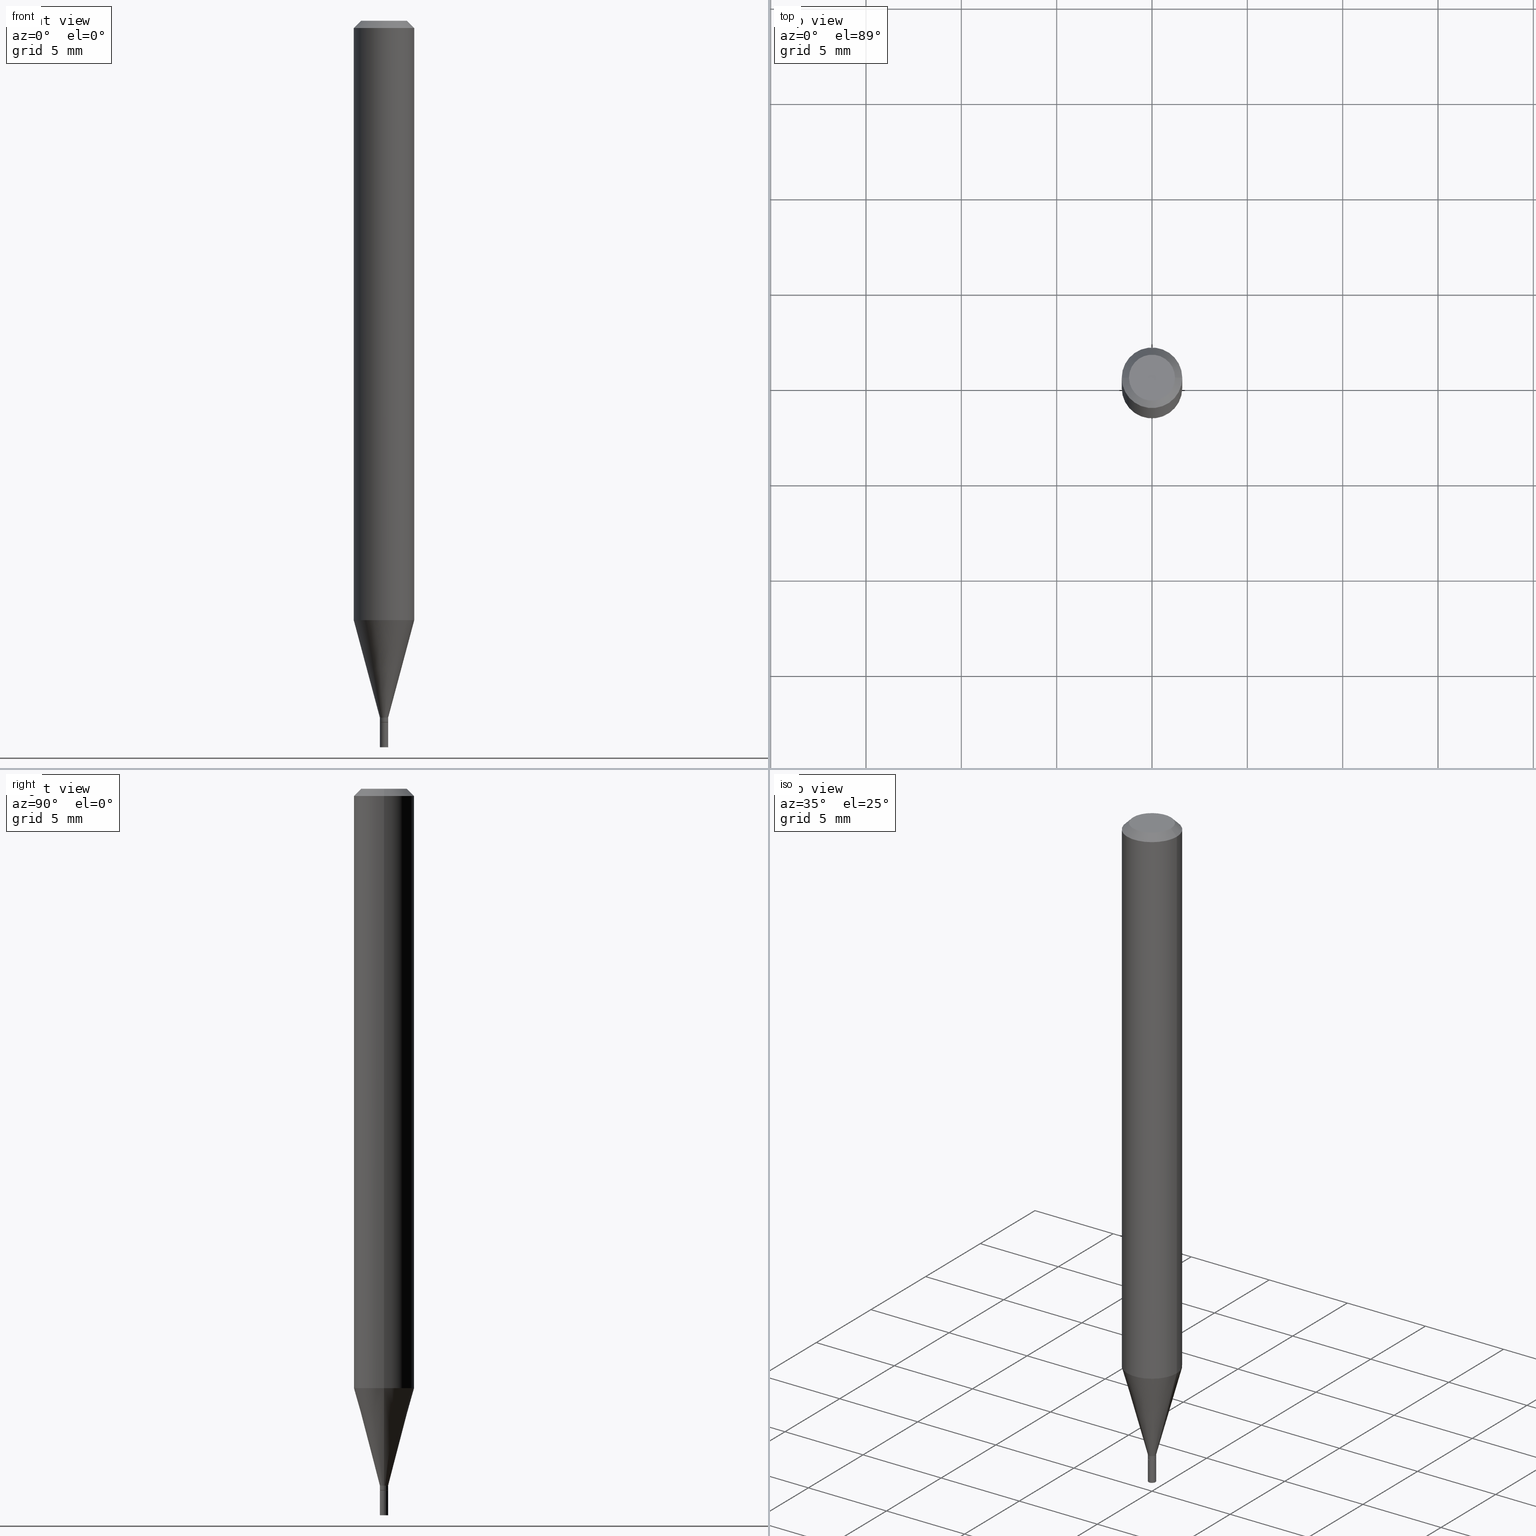
[diagram: canonical four-view strip — front | top / right | iso, engineering-drawing reading convention]
A machine part, canonical four-view strip (front | top / right | iso — engineering-drawing reading convention). The complete STEP part file that produces these views, byte-faithful:
ISO-10303-21;
HEADER;
FILE_DESCRIPTION (( 'STEP AP203' ),
    '1' );
FILE_NAME ('02324.STEP',
    '2024-03-18T20:07:10',
    ( '' ),
    ( '' ),
    'SwSTEP 2.0',
    'SolidWorks 2023',
    '' );
FILE_SCHEMA (( 'CONFIG_CONTROL_DESIGN' ));
ENDSEC;

DATA;
#1 = ORIENTED_EDGE ( 'NONE', *, *, #111, .T. ) ;
#2 = PERSON_AND_ORGANIZATION_ROLE ( 'design_owner' ) ;
#3 = CARTESIAN_POINT ( 'NONE',  ( 3.668203209277705088E-31, -5.237222008264718399E-17, -0.01499999999999999944 ) ) ;
#4 = COORDINATED_UNIVERSAL_TIME_OFFSET ( 5, 0, .BEHIND. ) ;
#5 = FACE_OUTER_BOUND ( 'NONE', #14, .T. ) ;
#6 = AXIS2_PLACEMENT_3D ( 'NONE', #339, #125, #450 ) ;
#7 = APPROVAL_ROLE ( '' ) ;
#8 = EDGE_CURVE ( 'NONE', #461, #235, #139, .T. ) ;
#9 = DIMENSIONAL_EXPONENTS ( 1.000000000000000000, 0.000000000000000000, 0.000000000000000000, 0.000000000000000000, 0.000000000000000000, 0.000000000000000000, 0.000000000000000000 ) ;
#10 = PRODUCT_RELATED_PRODUCT_CATEGORY ( 'detail', '', ( #334 ) ) ;
#11 = CIRCLE ( 'NONE', #381, 0.008499999999999922548 ) ;
#12 = SECURITY_CLASSIFICATION ( '', '', #443 ) ;
#13 = EDGE_CURVE ( 'NONE', #108, #284, #264, .T. ) ;
#14 = EDGE_LOOP ( 'NONE', ( #274, #181 ) ) ;
#15 = APPROVAL ( #190, 'UNSPECIFIED' ) ;
#16 = DIRECTION ( 'NONE',  ( -2.445468806185136597E-29, 3.491481338843145583E-15, 1.000000000000000000 ) ) ;
#17 = EDGE_LOOP ( 'NONE', ( #60, #199, #147, #30 ) ) ;
#18 = CARTESIAN_POINT ( 'NONE',  ( 3.668203209277705088E-31, -5.237222008264718399E-17, -0.01499999999999999944 ) ) ;
#19 = CC_DESIGN_PERSON_AND_ORGANIZATION_ASSIGNMENT ( #165, #297, ( #131 ) ) ;
#20 = CARTESIAN_POINT ( 'NONE',  ( -0.008500000000000000611, 6.039613253960852014E-17, -4.181094826716670069E-31 ) ) ;
#21 = CIRCLE ( 'NONE', #298, 0.008499999999999922548 ) ;
#22 = ORIENTED_EDGE ( 'NONE', *, *, #243, .F. ) ;
#23 = CARTESIAN_POINT ( 'NONE',  ( 0.008000000000000000167, -5.115020161405208194E-15, -1.449000000000000066 ) ) ;
#24 = CARTESIAN_POINT ( 'NONE',  ( 0.008499999999999922548, -5.935518276033272371E-17, 4.144750259426508219E-31 ) ) ;
#25 = APPROVAL ( #166, 'UNSPECIFIED' ) ;
#26 = VERTEX_POINT ( 'NONE', #272 ) ;
#27 = LINE ( 'NONE', #134, #130 ) ;
#28 = EDGE_CURVE ( 'NONE', #46, #26, #129, .T. ) ;
#29 = AXIS2_PLACEMENT_3D ( 'NONE', #375, #100, #64 ) ;
#30 = ORIENTED_EDGE ( 'NONE', *, *, #427, .T. ) ;
#31 = CARTESIAN_POINT ( 'NONE',  ( 3.543484300162263247E-29, -5.059156459983718502E-15, -1.449000000000000066 ) ) ;
#32 = COORDINATED_UNIVERSAL_TIME_OFFSET ( 5, 0, .BEHIND. ) ;
#33 = DIRECTION ( 'NONE',  ( 1.000000000000000000, -6.982962677686274599E-15, 0.000000000000000000 ) ) ;
#34 = ORIENTED_EDGE ( 'NONE', *, *, #387, .T. ) ;
#35 = LENGTH_MEASURE_WITH_UNIT ( LENGTH_MEASURE( 0.02539999999999999897 ), #364 );
#36 = ADVANCED_FACE ( 'NONE', ( #63 ), #417, .T. ) ;
#37 = CARTESIAN_POINT ( 'NONE',  ( 0.008500000000000000611, -5.118511642744051990E-15, -1.449000000000000066 ) ) ;
#38 = AXIS2_PLACEMENT_3D ( 'NONE', #220, #363, #182 ) ;
#39 = COORDINATED_UNIVERSAL_TIME_OFFSET ( 5, 0, .BEHIND. ) ;
#40 = PLANE ( 'NONE',  #228 ) ;
#41 = PERSON_AND_ORGANIZATION ( #294, #441 ) ;
#42 = DIRECTION ( 'NONE',  ( 1.000000000000000000, -6.982962677686274599E-15, 0.000000000000000000 ) ) ;
#43 = CARTESIAN_POINT ( 'NONE',  ( 5.935518276036870316E-17, 0.008499999999994942157, -1.449000000000000066 ) ) ;
#44 = PERSON_AND_ORGANIZATION ( #294, #441 ) ;
#45 = CARTESIAN_POINT ( 'NONE',  ( 3.543484300162263247E-29, -5.059156459983718502E-15, -1.449000000000000066 ) ) ;
#46 = VERTEX_POINT ( 'NONE', #67 ) ;
#47 = VECTOR ( 'NONE', #337, 39.37007874015748143 ) ;
#48 = LOCAL_TIME ( 16, 7, 10.00000000000000000, #39 ) ;
#49 = DIRECTION ( 'NONE',  ( 1.000000000000000000, -6.982962677686266711E-15, 4.876176775795936353E-29 ) ) ;
#50 = EDGE_CURVE ( 'NONE', #26, #46, #407, .T. ) ;
#51 = EDGE_LOOP ( 'NONE', ( #171, #359 ) ) ;
#52 = CC_DESIGN_PERSON_AND_ORGANIZATION_ASSIGNMENT ( #327, #260, ( #446 ) ) ;
#53 = CIRCLE ( 'NONE', #238, 0.008500000000000000611 ) ;
#54 = ORIENTED_EDGE ( 'NONE', *, *, #71, .F. ) ;
#55 = LINE ( 'NONE', #24, #333 ) ;
#56 = CARTESIAN_POINT ( 'NONE',  ( -0.008499999999999922548, -4.963845514055678678E-15, -1.439000000000000057 ) ) ;
#57 = EDGE_CURVE ( 'NONE', #235, #318, #176, .T. ) ;
#58 = DIRECTION ( 'NONE',  ( 2.438088387897960049E-29, -3.491481338843145188E-15, -1.000000000000000000 ) ) ;
#59 = CARTESIAN_POINT ( 'NONE',  ( 3.668203209277705088E-31, -5.237222008264718399E-17, -0.01499999999999999944 ) ) ;
#60 = ORIENTED_EDGE ( 'NONE', *, *, #408, .F. ) ;
#61 = AXIS2_PLACEMENT_3D ( 'NONE', #59, #95, #422 ) ;
#62 = AXIS2_PLACEMENT_3D ( 'NONE', #384, #347, #338 ) ;
#63 = FACE_OUTER_BOUND ( 'NONE', #158, .T. ) ;
#64 = DIRECTION ( 'NONE',  ( 1.000000000000000000, -6.982962677686266711E-15, 4.876176775795935793E-29 ) ) ;
#65 = DESIGN_CONTEXT ( 'detailed design', #197, 'design' ) ;
#66 = VERTEX_POINT ( 'NONE', #343 ) ;
#67 = CARTESIAN_POINT ( 'NONE',  ( 0.06249999999999999306, -4.757035983437653502E-15, -1.237469256391281025 ) ) ;
#68 = VERTEX_POINT ( 'NONE', #97 ) ;
#69 = LINE ( 'NONE', #160, #85 ) ;
#70 = CIRCLE ( 'NONE', #248, 0.04749999999999999362 ) ;
#71 = EDGE_CURVE ( 'NONE', #102, #88, #175, .T. ) ;
#72 = DIRECTION ( 'NONE',  ( 1.000000000000000000, -6.982962677686266711E-15, 4.876176775795935793E-29 ) ) ;
#73 = ORIENTED_EDGE ( 'NONE', *, *, #128, .F. ) ;
#74 = DIRECTION ( 'NONE',  ( 0.000000000000000000, 0.000000000000000000, 1.000000000000000000 ) ) ;
#75 = CARTESIAN_POINT ( 'NONE',  ( -0.008500000000000000611, -5.087793101584609375E-15, -1.449000000000000066 ) ) ;
#76 = APPROVAL_DATE_TIME ( #396, #15 ) ;
#77 = CARTESIAN_POINT ( 'NONE',  ( -0.06250000000000000000, -1.742397308232391840E-15, -0.01499999999999999944 ) ) ;
#78 = ORIENTED_EDGE ( 'NONE', *, *, #427, .F. ) ;
#79 = DIRECTION ( 'NONE',  ( -2.445468806185136597E-29, 3.491481338843145583E-15, 1.000000000000000000 ) ) ;
#80 = CARTESIAN_POINT ( 'NONE',  ( 3.519029612100411702E-29, -5.024241646595286853E-15, -1.439000000000000057 ) ) ;
#81 = ADVANCED_FACE ( 'NONE', ( #143 ), #258, .T. ) ;
#82 = CARTESIAN_POINT ( 'NONE',  ( 3.542261565759170446E-29, -5.057410719314296998E-15, -1.448500000000000121 ) ) ;
#83 = DATE_AND_TIME ( #404, #91 ) ;
#84 = DIRECTION ( 'NONE',  ( -2.445468806185136597E-29, 3.491481338843145583E-15, 1.000000000000000000 ) ) ;
#85 = VECTOR ( 'NONE', #215, 39.37007874015747433 ) ;
#86 = LINE ( 'NONE', #56, #370 ) ;
#87 = MANIFOLD_SOLID_BREP ( 'Body-Move/Copy2[1]', #312 ) ;
#88 = VERTEX_POINT ( 'NONE', #379 ) ;
#89 = CARTESIAN_POINT ( 'NONE',  ( 3.316907271900976096E-16, 0.04749999999999999362, 5.577130024057243141E-16 ) ) ;
#90 = AXIS2_PLACEMENT_3D ( 'NONE', #236, #458, #340 ) ;
#91 = LOCAL_TIME ( 16, 7, 10.00000000000000000, #402 ) ;
#92 = EDGE_LOOP ( 'NONE', ( #34, #105, #389, #54 ) ) ;
#93 = EDGE_CURVE ( 'NONE', #88, #205, #55, .T. ) ;
#94 = APPLICATION_CONTEXT ( 'configuration controlled 3d designs of mechanical parts and assemblies' ) ;
#95 = DIRECTION ( 'NONE',  ( -2.445468806185136597E-29, 3.491481338843145583E-15, 1.000000000000000000 ) ) ;
#96 = ORIENTED_EDGE ( 'NONE', *, *, #420, .T. ) ;
#97 = CARTESIAN_POINT ( 'NONE',  ( -0.008000000000000000167, -4.999663813948800024E-15, -1.449000000000000066 ) ) ;
#98 = CC_DESIGN_PERSON_AND_ORGANIZATION_ASSIGNMENT ( #126, #262, ( #12 ) ) ;
#99 = AXIS2_PLACEMENT_3D ( 'NONE', #163, #84, #49 ) ;
#100 = DIRECTION ( 'NONE',  ( -2.445468806185136597E-29, 3.491481338843145583E-15, 1.000000000000000000 ) ) ;
#101 = CIRCLE ( 'NONE', #465, 0.04749999999999999362 ) ;
#102 = VERTEX_POINT ( 'NONE', #23 ) ;
#103 = FACE_OUTER_BOUND ( 'NONE', #194, .T. ) ;
#104 = FACE_OUTER_BOUND ( 'NONE', #17, .T. ) ;
#105 = ORIENTED_EDGE ( 'NONE', *, *, #227, .T. ) ;
#106 = ORIENTED_EDGE ( 'NONE', *, *, #371, .F. ) ;
#107 = DIRECTION ( 'NONE',  ( 1.000000000000000000, -6.982962677686211490E-15, 0.000000000000000000 ) ) ;
#108 = VERTEX_POINT ( 'NONE', #201 ) ;
#109 = CARTESIAN_POINT ( 'NONE',  ( 0.000000000000000000, 0.000000000000000000, 0.000000000000000000 ) ) ;
#110 = CARTESIAN_POINT ( 'NONE',  ( -0.008499999999999922548, -4.420178560143938947E-15, -1.439000000000000057 ) ) ;
#111 = EDGE_CURVE ( 'NONE', #26, #284, #140, .T. ) ;
#112 = CONICAL_SURFACE ( 'NONE', #62, 0.06250000000000000000, 0.7853981633974000953 ) ;
#113 = DATE_AND_TIME ( #463, #424 ) ;
#114 = CARTESIAN_POINT ( 'NONE',  ( 3.543484300162263247E-29, -5.059156459983718502E-15, -1.449000000000000066 ) ) ;
#115 = ORIENTED_EDGE ( 'NONE', *, *, #8, .T. ) ;
#116 = DIRECTION ( 'NONE',  ( -2.445468806185136597E-29, 3.491481338843145583E-15, 1.000000000000000000 ) ) ;
#117 = ADVANCED_FACE ( 'NONE', ( #169 ), #206, .T. ) ;
#118 = EDGE_LOOP ( 'NONE', ( #211, #276, #178, #245 ) ) ;
#119 = ADVANCED_FACE ( 'NONE', ( #104 ), #112, .T. ) ;
#120 = CYLINDRICAL_SURFACE ( 'NONE', #341, 0.008499999999999922548 ) ;
#121 = DIRECTION ( 'NONE',  ( -2.445468806185136597E-29, 3.491481338843145583E-15, 1.000000000000000000 ) ) ;
#122 = CONICAL_SURFACE ( 'NONE', #452, 0.008000000000000000167, 0.7853981633974718157 ) ;
#123 = CC_DESIGN_APPROVAL ( #15, ( #446 ) ) ;
#124 = PERSON_AND_ORGANIZATION ( #294, #441 ) ;
#125 = DIRECTION ( 'NONE',  ( -2.445468806185136597E-29, 3.491481338843145583E-15, 1.000000000000000000 ) ) ;
#126 = PERSON_AND_ORGANIZATION ( #294, #441 ) ;
#127 = DIRECTION ( 'NONE',  ( 1.000000000000000000, -6.982962677686265922E-15, 4.876176775795935793E-29 ) ) ;
#128 = EDGE_CURVE ( 'NONE', #46, #108, #27, .T. ) ;
#129 = CIRCLE ( 'NONE', #380, 0.06250000000000000000 ) ;
#130 = VECTOR ( 'NONE', #269, 39.37007874015748143 ) ;
#131 = PRODUCT_DEFINITION_FORMATION_WITH_SPECIFIED_SOURCE ( 'ANY', '', #334, .NOT_KNOWN. ) ;
#132 = DIRECTION ( 'NONE',  ( -2.438088387897960049E-29, 3.491481338843145188E-15, 1.000000000000000000 ) ) ;
#133 = ADVANCED_FACE ( 'NONE', ( #257 ), #223, .T. ) ;
#134 = CARTESIAN_POINT ( 'NONE',  ( 0.06250000000000000000, -4.364351673553916694E-16, 3.047610484872459871E-30 ) ) ;
#135 = AXIS2_PLACEMENT_3D ( 'NONE', #403, #331, #263 ) ;
#136 = DIRECTION ( 'NONE',  ( 1.000000000000000000, -6.982962677686267499E-15, 5.108144071313017768E-29 ) ) ;
#137 = ORIENTED_EDGE ( 'NONE', *, *, #204, .T. ) ;
#138 = ORIENTED_EDGE ( 'NONE', *, *, #195, .T. ) ;
#139 = LINE ( 'NONE', #20, #270 ) ;
#140 = LINE ( 'NONE', #314, #447 ) ;
#141 = DIRECTION ( 'NONE',  ( -1.000000000000000000, 6.982962677686265922E-15, -4.876176775795935793E-29 ) ) ;
#142 = AXIS2_PLACEMENT_3D ( 'NONE', #157, #325, #72 ) ;
#143 = FACE_OUTER_BOUND ( 'NONE', #373, .T. ) ;
#144 = APPROVAL_PERSON_ORGANIZATION ( #357, #25, #301 ) ;
#145 = ORIENTED_EDGE ( 'NONE', *, *, #409, .T. ) ;
#146 = DIRECTION ( 'NONE',  ( -0.2588190451025214611, 5.211531920934551042E-15, 0.9659258262890682012 ) ) ;
#147 = ORIENTED_EDGE ( 'NONE', *, *, #152, .T. ) ;
#148 = CARTESIAN_POINT ( 'NONE',  ( 3.576687321579069994E-29, -5.368277968210015545E-15, -1.500000000000000222 ) ) ;
#149 = ORIENTED_EDGE ( 'NONE', *, *, #243, .T. ) ;
#150 = CYLINDRICAL_SURFACE ( 'NONE', #454, 0.008500000000000000611 ) ;
#151 = EDGE_CURVE ( 'NONE', #349, #318, #320, .T. ) ;
#152 = EDGE_CURVE ( 'NONE', #437, #284, #390, .T. ) ;
#153 = DIRECTION ( 'NONE',  ( -2.445468806185136597E-29, 3.491481338843145583E-15, 1.000000000000000000 ) ) ;
#154 = ORIENTED_EDGE ( 'NONE', *, *, #128, .T. ) ;
#155 = DIRECTION ( 'NONE',  ( 1.000000000000000000, -6.982962677686265922E-15, 4.876176775795935793E-29 ) ) ;
#156 = CC_DESIGN_APPROVAL ( #25, ( #12 ) ) ;
#157 = CARTESIAN_POINT ( 'NONE',  ( 0.000000000000000000, 0.000000000000000000, 0.000000000000000000 ) ) ;
#158 = EDGE_LOOP ( 'NONE', ( #315, #1, #429, #73 ) ) ;
#159 = CALENDAR_DATE ( 2024, 18, 3 ) ;
#160 = CARTESIAN_POINT ( 'NONE',  ( 0.008499999999999922548, -5.083596829355619552E-15, -1.439000000000000057 ) ) ;
#161 = CARTESIAN_POINT ( 'NONE',  ( 0.06250000000000000000, -4.811533449433679005E-16, -0.01499999999999999944 ) ) ;
#162 = APPLICATION_PROTOCOL_DEFINITION ( 'international standard', 'config_control_design', 1994, #197 ) ;
#163 = CARTESIAN_POINT ( 'NONE',  ( 0.000000000000000000, 0.000000000000000000, 0.000000000000000000 ) ) ;
#164 = AXIS2_PLACEMENT_3D ( 'NONE', #45, #132, #127 ) ;
#165 = PERSON_AND_ORGANIZATION ( #294, #441 ) ;
#166 = APPROVAL_STATUS ( 'not_yet_approved' ) ;
#167 = LOCAL_TIME ( 16, 7, 10.00000000000000000, #230 ) ;
#168 = ORIENTED_EDGE ( 'NONE', *, *, #93, .T. ) ;
#169 = FACE_OUTER_BOUND ( 'NONE', #385, .T. ) ;
#170 = AXIS2_PLACEMENT_3D ( 'NONE', #453, #177, #308 ) ;
#171 = ORIENTED_EDGE ( 'NONE', *, *, #406, .T. ) ;
#172 = CARTESIAN_POINT ( 'NONE',  ( -3.538878827018360888E-44, 5.052581064911080951E-30, 1.447116732001547520E-15 ) ) ;
#173 = EDGE_LOOP ( 'NONE', ( #174, #455, #168, #383 ) ) ;
#174 = ORIENTED_EDGE ( 'NONE', *, *, #267, .F. ) ;
#175 = LINE ( 'NONE', #244, #330 ) ;
#176 = CIRCLE ( 'NONE', #90, 0.008500000000000000611 ) ;
#177 = DIRECTION ( 'NONE',  ( -2.445468806185136597E-29, 3.491481338843145583E-15, 1.000000000000000000 ) ) ;
#178 = ORIENTED_EDGE ( 'NONE', *, *, #13, .T. ) ;
#179 = DIRECTION ( 'NONE',  ( -2.445468806185136597E-29, 3.491481338843145583E-15, 1.000000000000000000 ) ) ;
#180 = CARTESIAN_POINT ( 'NONE',  ( -0.06250000000000000000, 3.840629472727444916E-16, -0.01499999999999999944 ) ) ;
#181 = ORIENTED_EDGE ( 'NONE', *, *, #275, .F. ) ;
#182 = DIRECTION ( 'NONE',  ( 1.000000000000000000, -6.982962677686267499E-15, 4.876176775795935793E-29 ) ) ;
#183 = ORIENTED_EDGE ( 'NONE', *, *, #57, .F. ) ;
#184 = APPROVAL_ROLE ( '' ) ;
#185 = DIRECTION ( 'NONE',  ( -2.445468806185136597E-29, 3.491481338843145583E-15, 1.000000000000000000 ) ) ;
#186 =( NAMED_UNIT ( * ) PLANE_ANGLE_UNIT ( ) SI_UNIT ( $, .RADIAN. ) );
#187 = DIRECTION ( 'NONE',  ( -1.000000000000000000, 6.982962677686266711E-15, 0.000000000000000000 ) ) ;
#188 = CALENDAR_DATE ( 2024, 18, 3 ) ;
#189 = CARTESIAN_POINT ( 'NONE',  ( 3.543484300162263247E-29, -5.059156459983718502E-15, -1.449000000000000066 ) ) ;
#190 = APPROVAL_STATUS ( 'not_yet_approved' ) ;
#191 = CIRCLE ( 'NONE', #313, 0.008000000000000000167 ) ;
#192 = APPROVAL_PERSON_ORGANIZATION ( #41, #15, #184 ) ;
#193 = ADVANCED_FACE ( 'NONE', ( #386 ), #254, .T. ) ;
#194 = EDGE_LOOP ( 'NONE', ( #221, #137, #353, #183 ) ) ;
#195 = EDGE_CURVE ( 'NONE', #217, #205, #11, .T. ) ;
#196 = AXIS2_PLACEMENT_3D ( 'NONE', #435, #153, #283 ) ;
#197 = APPLICATION_CONTEXT ( 'configuration controlled 3d designs of mechanical parts and assemblies' ) ;
#198 = CALENDAR_DATE ( 2024, 18, 3 ) ;
#199 = ORIENTED_EDGE ( 'NONE', *, *, #406, .F. ) ;
#200 = DIRECTION ( 'NONE',  ( -2.445468806185136597E-29, 3.491481338843145583E-15, 1.000000000000000000 ) ) ;
#201 = CARTESIAN_POINT ( 'NONE',  ( 0.06250000000000000000, -4.888073874380388472E-16, -0.01499999999999999944 ) ) ;
#202 = FACE_OUTER_BOUND ( 'NONE', #92, .T. ) ;
#203 = CARTESIAN_POINT ( 'NONE',  ( 3.026192465117994899E-29, -4.320600816082261833E-15, -1.237469256391281025 ) ) ;
#204 = EDGE_CURVE ( 'NONE', #461, #349, #398, .T. ) ;
#205 = VERTEX_POINT ( 'NONE', #433 ) ;
#206 = CONICAL_SURFACE ( 'NONE', #388, 0.008499999999999922548, 0.2617993877991501295 ) ;
#207 = DIRECTION ( 'NONE',  ( -2.445468806185136877E-29, 3.491481338843145188E-15, 1.000000000000000000 ) ) ;
#208 = CARTESIAN_POINT ( 'NONE',  ( 3.519029612100411702E-29, -5.024241646595286853E-15, -1.439000000000000057 ) ) ;
#209 = EDGE_LOOP ( 'NONE', ( #282, #255 ) ) ;
#210 = DIRECTION ( 'NONE',  ( -2.445468806185136877E-29, 3.491481338843145188E-15, 1.000000000000000000 ) ) ;
#211 = ORIENTED_EDGE ( 'NONE', *, *, #451, .F. ) ;
#212 = CLOSED_SHELL ( 'NONE', ( #316, #397, #133, #36, #117, #81, #193, #119, #369, #377, #332, #362 ) ) ;
#213 = CIRCLE ( 'NONE', #6, 0.008000000000000000167 ) ;
#214 = APPROVAL_PERSON_ORGANIZATION ( #124, #292, #7 ) ;
#215 = DIRECTION ( 'NONE',  ( 0.2588190451025214611, 1.565188264969621573E-15, 0.9659258262890682012 ) ) ;
#216 = DIRECTION ( 'NONE',  ( -0.7071067811865642261, 7.493145998870414114E-15, 0.7071067811865309194 ) ) ;
#217 = VERTEX_POINT ( 'NONE', #110 ) ;
#218 = DATE_TIME_ROLE ( 'classification_date' ) ;
#219 = CC_DESIGN_PERSON_AND_ORGANIZATION_ASSIGNMENT ( #329, #319, ( #131 ) ) ;
#220 = CARTESIAN_POINT ( 'NONE',  ( 0.000000000000000000, 0.000000000000000000, 0.000000000000000000 ) ) ;
#221 = ORIENTED_EDGE ( 'NONE', *, *, #8, .F. ) ;
#222 = CYLINDRICAL_SURFACE ( 'NONE', #38, 0.008500000000000000611 ) ;
#223 = CONICAL_SURFACE ( 'NONE', #411, 0.06250000000000000000, 0.7853981633974000953 ) ;
#224 =( CONVERSION_BASED_UNIT ( 'INCH', #35 ) LENGTH_UNIT ( ) NAMED_UNIT ( #9 ) );
#225 = DIRECTION ( 'NONE',  ( 2.445468806185136597E-29, -3.491481338843145583E-15, -1.000000000000000000 ) ) ;
#226 = DIRECTION ( 'NONE',  ( 1.000000000000000000, -6.982962677686266711E-15, 0.000000000000000000 ) ) ;
#227 = EDGE_CURVE ( 'NONE', #68, #237, #365, .T. ) ;
#228 = AXIS2_PLACEMENT_3D ( 'NONE', #148, #438, #155 ) ;
#229 = CC_DESIGN_SECURITY_CLASSIFICATION ( #12, ( #131 ) ) ;
#230 = COORDINATED_UNIVERSAL_TIME_OFFSET ( 5, 0, .BEHIND. ) ;
#231 = DIRECTION ( 'NONE',  ( -2.445468806185136597E-29, 3.491481338843145583E-15, 1.000000000000000000 ) ) ;
#232 = DIRECTION ( 'NONE',  ( -2.445468806185136597E-29, 3.491481338843145583E-15, 1.000000000000000000 ) ) ;
#233 = CC_DESIGN_DATE_AND_TIME_ASSIGNMENT ( #113, #218, ( #12 ) ) ;
#234 = ORIENTED_EDGE ( 'NONE', *, *, #335, .F. ) ;
#235 = VERTEX_POINT ( 'NONE', #75 ) ;
#236 = CARTESIAN_POINT ( 'NONE',  ( 3.543484300162263247E-29, -5.059156459983718502E-15, -1.449000000000000066 ) ) ;
#237 = VERTEX_POINT ( 'NONE', #394 ) ;
#238 = AXIS2_PLACEMENT_3D ( 'NONE', #31, #185, #42 ) ;
#239 = CC_DESIGN_PERSON_AND_ORGANIZATION_ASSIGNMENT ( #44, #2, ( #334 ) ) ;
#240 = DIRECTION ( 'NONE',  ( -2.445468806185136597E-29, 3.491481338843145583E-15, 1.000000000000000000 ) ) ;
#241 = ADVANCED_BREP_SHAPE_REPRESENTATION ( '02324', ( #87, #252, #361 ), #249 ) ;
#242 = UNCERTAINTY_MEASURE_WITH_UNIT (LENGTH_MEASURE( 1.000000000000000082E-05 ), #224, 'distance_accuracy_value', 'NONE');
#243 = EDGE_CURVE ( 'NONE', #205, #46, #69, .T. ) ;
#244 = CARTESIAN_POINT ( 'NONE',  ( 0.008000000000000000167, -5.115020161405208194E-15, -1.449000000000000066 ) ) ;
#245 = ORIENTED_EDGE ( 'NONE', *, *, #152, .F. ) ;
#246 = DIRECTION ( 'NONE',  ( -2.445468806185136877E-29, 3.491481338843145188E-15, 1.000000000000000000 ) ) ;
#247 = DIRECTION ( 'NONE',  ( -2.445468806185136597E-29, 3.491481338843145583E-15, 1.000000000000000000 ) ) ;
#248 = AXIS2_PLACEMENT_3D ( 'NONE', #405, #16, #136 ) ;
#249 =( GEOMETRIC_REPRESENTATION_CONTEXT ( 3 ) GLOBAL_UNCERTAINTY_ASSIGNED_CONTEXT ( ( #242 ) ) GLOBAL_UNIT_ASSIGNED_CONTEXT ( ( #224, #186, #256 ) ) REPRESENTATION_CONTEXT ( 'NONE', 'WORKASPACE' ) );
#250 = DIRECTION ( 'NONE',  ( -2.445468806185136877E-29, 3.491481338843145188E-15, 1.000000000000000000 ) ) ;
#251 = ORIENTED_EDGE ( 'NONE', *, *, #335, .T. ) ;
#252 = MANIFOLD_SOLID_BREP ( 'Body-Move/Copy2[2]', #212 ) ;
#253 = DIRECTION ( 'NONE',  ( 1.000000000000000000, -6.982962677686266711E-15, 4.876176775795936353E-29 ) ) ;
#254 = CYLINDRICAL_SURFACE ( 'NONE', #142, 0.06250000000000000000 ) ;
#255 = ORIENTED_EDGE ( 'NONE', *, *, #57, .T. ) ;
#256 =( NAMED_UNIT ( * ) SI_UNIT ( $, .STERADIAN. ) SOLID_ANGLE_UNIT ( ) );
#257 = FACE_OUTER_BOUND ( 'NONE', #118, .T. ) ;
#258 = CONICAL_SURFACE ( 'NONE', #360, 0.008499999999999922548, 0.2617993877991501295 ) ;
#259 = CARTESIAN_POINT ( 'NONE',  ( -0.04749999999999999362, 3.578768372314235651E-16, 1.447116732001545153E-15 ) ) ;
#260 = PERSON_AND_ORGANIZATION_ROLE ( 'creator' ) ;
#261 = DIRECTION ( 'NONE',  ( 1.000000000000000000, -6.982962677686225690E-15, 0.000000000000000000 ) ) ;
#262 = PERSON_AND_ORGANIZATION_ROLE ( 'classification_officer' ) ;
#263 = DIRECTION ( 'NONE',  ( 1.000000000000000000, -6.982962677686211490E-15, 0.000000000000000000 ) ) ;
#264 = CIRCLE ( 'NONE', #61, 0.06250000000000000000 ) ;
#265 = VECTOR ( 'NONE', #216, 39.37007874015748143 ) ;
#266 = CC_DESIGN_APPROVAL ( #292, ( #131 ) ) ;
#267 = EDGE_CURVE ( 'NONE', #237, #217, #355, .T. ) ;
#268 = EDGE_CURVE ( 'NONE', #349, #461, #459, .T. ) ;
#269 = DIRECTION ( 'NONE',  ( -2.445468806185136877E-29, 3.491481338843145188E-15, 1.000000000000000000 ) ) ;
#270 = VECTOR ( 'NONE', #273, 39.37007874015748143 ) ;
#271 = DATE_AND_TIME ( #198, #167 ) ;
#272 = CARTESIAN_POINT ( 'NONE',  ( -0.06249999999999999306, -3.876511606232199217E-15, -1.237469256391281025 ) ) ;
#273 = DIRECTION ( 'NONE',  ( -2.445468806185136877E-29, 3.491481338843145188E-15, 1.000000000000000000 ) ) ;
#274 = ORIENTED_EDGE ( 'NONE', *, *, #387, .F. ) ;
#275 = EDGE_CURVE ( 'NONE', #68, #102, #191, .T. ) ;
#276 = ORIENTED_EDGE ( 'NONE', *, *, #408, .T. ) ;
#277 = VECTOR ( 'NONE', #250, 39.37007874015748143 ) ;
#278 = DIRECTION ( 'NONE',  ( 1.000000000000000000, -6.982962677686225690E-15, 0.000000000000000000 ) ) ;
#279 = CARTESIAN_POINT ( 'NONE',  ( 0.008500000000000000611, -5.296577191025051665E-15, -1.500000000000000222 ) ) ;
#280 = ORIENTED_EDGE ( 'NONE', *, *, #93, .F. ) ;
#281 = CARTESIAN_POINT ( 'NONE',  ( -0.008499999999999922548, 6.039613253960796547E-17, -4.181094826716631533E-31 ) ) ;
#282 = ORIENTED_EDGE ( 'NONE', *, *, #326, .T. ) ;
#283 = DIRECTION ( 'NONE',  ( 1.000000000000000000, -6.982962677686274599E-15, 0.000000000000000000 ) ) ;
#284 = VERTEX_POINT ( 'NONE', #77 ) ;
#285 = DIRECTION ( 'NONE',  ( 1.000000000000000000, 0.000000000000000000, 0.000000000000000000 ) ) ;
#286 = CONICAL_SURFACE ( 'NONE', #135, 0.008000000000000000167, 0.7853981633974718157 ) ;
#287 = FACE_OUTER_BOUND ( 'NONE', #288, .T. ) ;
#288 = EDGE_LOOP ( 'NONE', ( #96, #356, #393, #280 ) ) ;
#289 = MECHANICAL_CONTEXT ( 'NONE', #94, 'mechanical' ) ;
#290 = DIRECTION ( 'NONE',  ( 1.000000000000000000, -6.982962677686225690E-15, 0.000000000000000000 ) ) ;
#291 = ORIENTED_EDGE ( 'NONE', *, *, #111, .F. ) ;
#292 = APPROVAL ( #354, 'UNSPECIFIED' ) ;
#293 = DIRECTION ( 'NONE',  ( -2.445468806185136597E-29, 3.491481338843145583E-15, 1.000000000000000000 ) ) ;
#294 = PERSON ( 'UNSPECIFIED', 'UNSPECIFIED', 'UNSPECIFIED', ('UNSPECIFIED'), ('UNSPECIFIED'), ('UNSPECIFIED') ) ;
#295 = CARTESIAN_POINT ( 'NONE',  ( 0.000000000000000000, 0.000000000000000000, 0.000000000000000000 ) ) ;
#296 = AXIS2_PLACEMENT_3D ( 'NONE', #89, #58, #328 ) ;
#297 = PERSON_AND_ORGANIZATION_ROLE ( 'design_supplier' ) ;
#298 = AXIS2_PLACEMENT_3D ( 'NONE', #82, #200, #439 ) ;
#299 = APPROVAL_DATE_TIME ( #271, #25 ) ;
#300 = LINE ( 'NONE', #161, #47 ) ;
#301 = APPROVAL_ROLE ( '' ) ;
#302 = DIRECTION ( 'NONE',  ( -2.445468806185136597E-29, 3.491481338843145583E-15, 1.000000000000000000 ) ) ;
#303 = ADVANCED_FACE ( 'NONE', ( #351 ), #222, .T. ) ;
#304 = ORIENTED_EDGE ( 'NONE', *, *, #326, .F. ) ;
#305 = CIRCLE ( 'NONE', #368, 0.008499999999999922548 ) ;
#306 = AXIS2_PLACEMENT_3D ( 'NONE', #18, #121, #226 ) ;
#307 = ORIENTED_EDGE ( 'NONE', *, *, #275, .T. ) ;
#308 = DIRECTION ( 'NONE',  ( 1.000000000000000000, -6.982962677686262766E-15, 0.000000000000000000 ) ) ;
#309 = ADVANCED_FACE ( 'NONE', ( #464 ), #40, .F. ) ;
#310 = DIRECTION ( 'NONE',  ( -2.445468806185136597E-29, 3.491481338843145583E-15, 1.000000000000000000 ) ) ;
#311 = FACE_OUTER_BOUND ( 'NONE', #173, .T. ) ;
#312 = CLOSED_SHELL ( 'NONE', ( #303, #309, #456, #444 ) ) ;
#313 = AXIS2_PLACEMENT_3D ( 'NONE', #114, #293, #466 ) ;
#314 = CARTESIAN_POINT ( 'NONE',  ( -0.06250000000000000000, 4.440892098500626162E-16, -3.074334431409316114E-30 ) ) ;
#315 = ORIENTED_EDGE ( 'NONE', *, *, #28, .T. ) ;
#316 = ADVANCED_FACE ( 'NONE', ( #287 ), #120, .T. ) ;
#317 = DIRECTION ( 'NONE',  ( -2.445468806185136597E-29, 3.491481338843145583E-15, 1.000000000000000000 ) ) ;
#318 = VERTEX_POINT ( 'NONE', #37 ) ;
#319 = PERSON_AND_ORGANIZATION_ROLE ( 'creator' ) ;
#320 = LINE ( 'NONE', #399, #277 ) ;
#321 = VECTOR ( 'NONE', #246, 39.37007874015748143 ) ;
#322 = LOCAL_TIME ( 16, 7, 10.00000000000000000, #4 ) ;
#323 = FACE_OUTER_BOUND ( 'NONE', #342, .T. ) ;
#324 = APPLICATION_PROTOCOL_DEFINITION ( 'international standard', 'config_control_design', 1994, #94 ) ;
#325 = DIRECTION ( 'NONE',  ( -2.445468806185136597E-29, 3.491481338843145583E-15, 1.000000000000000000 ) ) ;
#326 = EDGE_CURVE ( 'NONE', #318, #235, #53, .T. ) ;
#327 = PERSON_AND_ORGANIZATION ( #294, #441 ) ;
#328 = DIRECTION ( 'NONE',  ( -1.000000000000000000, 6.982962677686265922E-15, -4.876176775795935793E-29 ) ) ;
#329 = PERSON_AND_ORGANIZATION ( #294, #441 ) ;
#330 = VECTOR ( 'NONE', #457, 39.37007874015748143 ) ;
#331 = DIRECTION ( 'NONE',  ( -2.445468806185136597E-29, 3.491481338843145583E-15, 1.000000000000000000 ) ) ;
#332 = ADVANCED_FACE ( 'NONE', ( #323 ), #122, .T. ) ;
#333 = VECTOR ( 'NONE', #207, 39.37007874015748143 ) ;
#334 = PRODUCT ( '02324', '02324', '', ( #289 ) ) ;
#335 = EDGE_CURVE ( 'NONE', #217, #26, #86, .T. ) ;
#336 = EDGE_LOOP ( 'NONE', ( #391, #115, #304, #416 ) ) ;
#337 = DIRECTION ( 'NONE',  ( 0.7071067811865134889, -7.319954787623140872E-15, -0.7071067811865816566 ) ) ;
#338 = DIRECTION ( 'NONE',  ( -1.000000000000000000, 6.982962677686266711E-15, 0.000000000000000000 ) ) ;
#339 = CARTESIAN_POINT ( 'NONE',  ( 3.543484300162263247E-29, -5.059156459983718502E-15, -1.449000000000000066 ) ) ;
#340 = DIRECTION ( 'NONE',  ( 1.000000000000000000, -6.982962677686274599E-15, 0.000000000000000000 ) ) ;
#341 = AXIS2_PLACEMENT_3D ( 'NONE', #392, #79, #253 ) ;
#342 = EDGE_LOOP ( 'NONE', ( #376, #307, #346, #106 ) ) ;
#343 = CARTESIAN_POINT ( 'NONE',  ( 0.04749999999999999362, -4.035134999187553478E-16, 1.447116732001550281E-15 ) ) ;
#344 = CARTESIAN_POINT ( 'NONE',  ( -0.008500000000000000611, -5.087793101584609375E-15, -1.500000000000000222 ) ) ;
#345 = CARTESIAN_POINT ( 'NONE',  ( 3.519029612100411702E-29, -5.024241646595286853E-15, -1.439000000000000057 ) ) ;
#346 = ORIENTED_EDGE ( 'NONE', *, *, #71, .T. ) ;
#347 = DIRECTION ( 'NONE',  ( 2.445468806185136597E-29, -3.491481338843145583E-15, -1.000000000000000000 ) ) ;
#348 = AXIS2_PLACEMENT_3D ( 'NONE', #449, #302, #261 ) ;
#349 = VERTEX_POINT ( 'NONE', #279 ) ;
#350 = CIRCLE ( 'NONE', #348, 0.008499999999999922548 ) ;
#351 = FACE_OUTER_BOUND ( 'NONE', #336, .T. ) ;
#352 = ORIENTED_EDGE ( 'NONE', *, *, #50, .T. ) ;
#353 = ORIENTED_EDGE ( 'NONE', *, *, #151, .T. ) ;
#354 = APPROVAL_STATUS ( 'not_yet_approved' ) ;
#355 = LINE ( 'NONE', #281, #321 ) ;
#356 = ORIENTED_EDGE ( 'NONE', *, *, #267, .T. ) ;
#357 = PERSON_AND_ORGANIZATION ( #294, #441 ) ;
#358 = DIRECTION ( 'NONE',  ( -0.7071067811865134889, 2.468850131081900101E-15, -0.7071067811865816566 ) ) ;
#359 = ORIENTED_EDGE ( 'NONE', *, *, #451, .T. ) ;
#360 = AXIS2_PLACEMENT_3D ( 'NONE', #208, #240, #278 ) ;
#361 = AXIS2_PLACEMENT_3D ( 'NONE', #295, #74, #285 ) ;
#362 = ADVANCED_FACE ( 'NONE', ( #311 ), #410, .T. ) ;
#363 = DIRECTION ( 'NONE',  ( -2.445468806185136597E-29, 3.491481338843145583E-15, 1.000000000000000000 ) ) ;
#364 =( LENGTH_UNIT ( ) NAMED_UNIT ( * ) SI_UNIT ( $, .METRE. ) );
#365 = LINE ( 'NONE', #430, #265 ) ;
#366 = PLANE ( 'NONE',  #413 ) ;
#367 = APPROVAL_DATE_TIME ( #83, #292 ) ;
#368 = AXIS2_PLACEMENT_3D ( 'NONE', #80, #231, #374 ) ;
#369 = ADVANCED_FACE ( 'NONE', ( #445 ), #415, .F. ) ;
#370 = VECTOR ( 'NONE', #146, 39.37007874015747433 ) ;
#371 = EDGE_CURVE ( 'NONE', #237, #88, #350, .T. ) ;
#372 = CIRCLE ( 'NONE', #306, 0.06250000000000000000 ) ;
#373 = EDGE_LOOP ( 'NONE', ( #234, #138, #149, #395 ) ) ;
#374 = DIRECTION ( 'NONE',  ( 1.000000000000000000, -6.982962677686225690E-15, 0.000000000000000000 ) ) ;
#375 = CARTESIAN_POINT ( 'NONE',  ( 0.000000000000000000, 0.000000000000000000, 0.000000000000000000 ) ) ;
#376 = ORIENTED_EDGE ( 'NONE', *, *, #227, .F. ) ;
#377 = ADVANCED_FACE ( 'NONE', ( #5 ), #442, .F. ) ;
#378 = DIRECTION ( 'NONE',  ( 2.438088387897960049E-29, -3.491481338843145188E-15, -1.000000000000000000 ) ) ;
#379 = CARTESIAN_POINT ( 'NONE',  ( 0.008499999999999922548, -5.116765902074629697E-15, -1.448500000000000121 ) ) ;
#380 = AXIS2_PLACEMENT_3D ( 'NONE', #203, #232, #419 ) ;
#381 = AXIS2_PLACEMENT_3D ( 'NONE', #462, #317, #290 ) ;
#382 = DIRECTION ( 'NONE',  ( 1.000000000000000000, -6.982962677686267499E-15, 4.876176775795935793E-29 ) ) ;
#383 = ORIENTED_EDGE ( 'NONE', *, *, #195, .F. ) ;
#384 = CARTESIAN_POINT ( 'NONE',  ( 3.668203209277705088E-31, -5.237222008264718399E-17, -0.01499999999999999944 ) ) ;
#385 = EDGE_LOOP ( 'NONE', ( #145, #251, #412, #22 ) ) ;
#386 = FACE_OUTER_BOUND ( 'NONE', #434, .T. ) ;
#387 = EDGE_CURVE ( 'NONE', #102, #68, #213, .T. ) ;
#388 = AXIS2_PLACEMENT_3D ( 'NONE', #345, #310, #425 ) ;
#389 = ORIENTED_EDGE ( 'NONE', *, *, #420, .F. ) ;
#390 = LINE ( 'NONE', #180, #423 ) ;
#391 = ORIENTED_EDGE ( 'NONE', *, *, #268, .T. ) ;
#392 = CARTESIAN_POINT ( 'NONE',  ( 0.000000000000000000, 0.000000000000000000, 0.000000000000000000 ) ) ;
#393 = ORIENTED_EDGE ( 'NONE', *, *, #409, .F. ) ;
#394 = CARTESIAN_POINT ( 'NONE',  ( -0.008499999999999922548, -4.997014586774688823E-15, -1.448500000000000121 ) ) ;
#395 = ORIENTED_EDGE ( 'NONE', *, *, #50, .F. ) ;
#396 = DATE_AND_TIME ( #188, #48 ) ;
#397 = ADVANCED_FACE ( 'NONE', ( #202 ), #286, .T. ) ;
#398 = CIRCLE ( 'NONE', #196, 0.008500000000000000611 ) ;
#399 = CARTESIAN_POINT ( 'NONE',  ( 0.008500000000000000611, -5.935518276033327838E-17, 4.144750259426545879E-31 ) ) ;
#400 = FACE_OUTER_BOUND ( 'NONE', #209, .T. ) ;
#401 = CC_DESIGN_DATE_AND_TIME_ASSIGNMENT ( #440, #432, ( #446 ) ) ;
#402 = COORDINATED_UNIVERSAL_TIME_OFFSET ( 5, 0, .BEHIND. ) ;
#403 = CARTESIAN_POINT ( 'NONE',  ( 3.543484300162263247E-29, -5.059156459983718502E-15, -1.449000000000000066 ) ) ;
#404 = CALENDAR_DATE ( 2024, 18, 3 ) ;
#405 = CARTESIAN_POINT ( 'NONE',  ( -3.538878827018360888E-44, 5.052581064911080951E-30, 1.447116732001547520E-15 ) ) ;
#406 = EDGE_CURVE ( 'NONE', #437, #66, #70, .T. ) ;
#407 = CIRCLE ( 'NONE', #170, 0.06250000000000000000 ) ;
#408 = EDGE_CURVE ( 'NONE', #66, #108, #300, .T. ) ;
#409 = EDGE_CURVE ( 'NONE', #205, #217, #305, .T. ) ;
#410 = CYLINDRICAL_SURFACE ( 'NONE', #99, 0.008499999999999922548 ) ;
#411 = AXIS2_PLACEMENT_3D ( 'NONE', #3, #225, #187 ) ;
#412 = ORIENTED_EDGE ( 'NONE', *, *, #28, .F. ) ;
#413 = AXIS2_PLACEMENT_3D ( 'NONE', #43, #378, #141 ) ;
#414 = SHAPE_DEFINITION_REPRESENTATION ( #448, #241 ) ;
#415 = PLANE ( 'NONE',  #296 ) ;
#416 = ORIENTED_EDGE ( 'NONE', *, *, #151, .F. ) ;
#417 = CYLINDRICAL_SURFACE ( 'NONE', #29, 0.06250000000000000000 ) ;
#418 = ORIENTED_EDGE ( 'NONE', *, *, #268, .F. ) ;
#419 = DIRECTION ( 'NONE',  ( 1.000000000000000000, -6.982962677686262766E-15, 0.000000000000000000 ) ) ;
#420 = EDGE_CURVE ( 'NONE', #88, #237, #21, .T. ) ;
#421 = DIRECTION ( 'NONE',  ( 1.000000000000000000, -6.982962677686267499E-15, 5.108144071313017768E-29 ) ) ;
#422 = DIRECTION ( 'NONE',  ( 1.000000000000000000, -6.982962677686266711E-15, 0.000000000000000000 ) ) ;
#423 = VECTOR ( 'NONE', #358, 39.37007874015748143 ) ;
#424 = LOCAL_TIME ( 16, 7, 10.00000000000000000, #32 ) ;
#425 = DIRECTION ( 'NONE',  ( 1.000000000000000000, -6.982962677686225690E-15, 0.000000000000000000 ) ) ;
#426 = ORIENTED_EDGE ( 'NONE', *, *, #204, .F. ) ;
#427 = EDGE_CURVE ( 'NONE', #284, #108, #372, .T. ) ;
#428 = DIRECTION ( 'NONE',  ( -2.445468806185136597E-29, 3.491481338843145583E-15, 1.000000000000000000 ) ) ;
#429 = ORIENTED_EDGE ( 'NONE', *, *, #13, .F. ) ;
#430 = CARTESIAN_POINT ( 'NONE',  ( -0.008000000000000000167, -5.002313041122910436E-15, -1.449000000000000066 ) ) ;
#431 = AXIS2_PLACEMENT_3D ( 'NONE', #460, #116, #33 ) ;
#432 = DATE_TIME_ROLE ( 'creation_date' ) ;
#433 = CARTESIAN_POINT ( 'NONE',  ( 0.008499999999999922548, -5.083596829355619552E-15, -1.439000000000000057 ) ) ;
#434 = EDGE_LOOP ( 'NONE', ( #291, #352, #154, #78 ) ) ;
#435 = CARTESIAN_POINT ( 'NONE',  ( 3.668203209277704895E-29, -5.237222008264718177E-15, -1.500000000000000222 ) ) ;
#436 = EDGE_LOOP ( 'NONE', ( #418, #426 ) ) ;
#437 = VERTEX_POINT ( 'NONE', #259 ) ;
#438 = DIRECTION ( 'NONE',  ( -2.438088387897960049E-29, 3.491481338843145188E-15, 1.000000000000000000 ) ) ;
#439 = DIRECTION ( 'NONE',  ( 1.000000000000000000, -6.982962677686225690E-15, 0.000000000000000000 ) ) ;
#440 = DATE_AND_TIME ( #159, #322 ) ;
#441 = ORGANIZATION ( 'UNSPECIFIED', 'UNSPECIFIED', '' ) ;
#442 = PLANE ( 'NONE',  #164 ) ;
#443 = SECURITY_CLASSIFICATION_LEVEL ( 'unclassified' ) ;
#444 = ADVANCED_FACE ( 'NONE', ( #400 ), #366, .F. ) ;
#445 = FACE_OUTER_BOUND ( 'NONE', #51, .T. ) ;
#446 = PRODUCT_DEFINITION ( 'UNKNOWN', '', #131, #65 ) ;
#447 = VECTOR ( 'NONE', #210, 39.37007874015748143 ) ;
#448 = PRODUCT_DEFINITION_SHAPE ( 'NONE', 'NONE',  #446 ) ;
#449 = CARTESIAN_POINT ( 'NONE',  ( 3.542261565759170446E-29, -5.057410719314296998E-15, -1.448500000000000121 ) ) ;
#450 = DIRECTION ( 'NONE',  ( 1.000000000000000000, -6.982962677686211490E-15, 0.000000000000000000 ) ) ;
#451 = EDGE_CURVE ( 'NONE', #66, #437, #101, .T. ) ;
#452 = AXIS2_PLACEMENT_3D ( 'NONE', #189, #428, #107 ) ;
#453 = CARTESIAN_POINT ( 'NONE',  ( 3.026192465117994899E-29, -4.320600816082261833E-15, -1.237469256391281025 ) ) ;
#454 = AXIS2_PLACEMENT_3D ( 'NONE', #109, #247, #382 ) ;
#455 = ORIENTED_EDGE ( 'NONE', *, *, #371, .T. ) ;
#456 = ADVANCED_FACE ( 'NONE', ( #103 ), #150, .T. ) ;
#457 = DIRECTION ( 'NONE',  ( 0.7071067811865642261, -2.468850131082431399E-15, 0.7071067811865309194 ) ) ;
#458 = DIRECTION ( 'NONE',  ( -2.445468806185136597E-29, 3.491481338843145583E-15, 1.000000000000000000 ) ) ;
#459 = CIRCLE ( 'NONE', #431, 0.008500000000000000611 ) ;
#460 = CARTESIAN_POINT ( 'NONE',  ( 3.668203209277704895E-29, -5.237222008264718177E-15, -1.500000000000000222 ) ) ;
#461 = VERTEX_POINT ( 'NONE', #344 ) ;
#462 = CARTESIAN_POINT ( 'NONE',  ( 3.519029612100411702E-29, -5.024241646595286853E-15, -1.439000000000000057 ) ) ;
#463 = CALENDAR_DATE ( 2024, 18, 3 ) ;
#464 = FACE_OUTER_BOUND ( 'NONE', #436, .T. ) ;
#465 = AXIS2_PLACEMENT_3D ( 'NONE', #172, #179, #421 ) ;
#466 = DIRECTION ( 'NONE',  ( 1.000000000000000000, -6.982962677686211490E-15, 0.000000000000000000 ) ) ;
ENDSEC;
END-ISO-10303-21;
